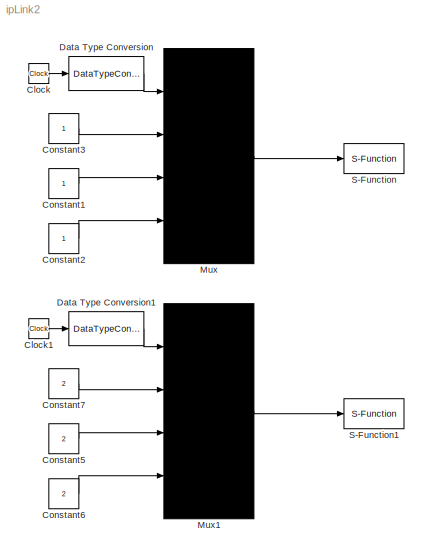
MODEL ipLink2
KIND model
BLOCK [Clock] Clock
  Decimation = 10
  SID = 102
BLOCK [Clock] Clock1
  Decimation = 10
  SID = 104
BLOCK [Constant] Constant1
  OutDataType = fixdt(1, 16)
  OutDataTypeMode = uint8
  OutDataTypeStr = uint8
  OutScaling = 2^0
  SID = 79
BLOCK [Constant] Constant2
  OutDataType = fixdt(1, 16)
  OutDataTypeMode = uint8
  OutDataTypeStr = uint8
  OutScaling = 2^0
  SID = 80
BLOCK [Constant] Constant3
  OutDataType = fixdt(1, 16)
  OutDataTypeMode = uint8
  OutDataTypeStr = uint8
  OutScaling = 2^0
  SID = 83
BLOCK [Constant] Constant5
  OutDataType = fixdt(1, 16)
  OutDataTypeMode = uint8
  OutDataTypeStr = uint8
  OutScaling = 2^0
  SID = 85
  Value = 2
BLOCK [Constant] Constant6
  OutDataType = fixdt(1, 16)
  OutDataTypeMode = uint8
  OutDataTypeStr = uint8
  OutScaling = 2^0
  SID = 86
  Value = 2
BLOCK [Constant] Constant7
  OutDataType = fixdt(1, 16)
  OutDataTypeMode = uint8
  OutDataTypeStr = uint8
  OutScaling = 2^0
  SID = 87
  Value = 2
BLOCK [DataTypeConversion] Data Type Conversion
  OutDataType = fixdt(1, 16)
  OutDataTypeMode = uint8
  OutDataTypeStr = uint8
  OutScaling = 2^0
  RndMeth = Floor
  SID = 103
  SaturateOnIntegerOverflow = off
BLOCK [DataTypeConversion] Data Type Conversion1
  OutDataType = fixdt(1, 16)
  OutDataTypeMode = uint8
  OutDataTypeStr = uint8
  OutScaling = 2^0
  RndMeth = Floor
  SID = 105
  SaturateOnIntegerOverflow = off
BLOCK [Mux] Mux
  DisplayOption = bar
  Ports = [4, 1]
  SID = 73
BLOCK [Mux] Mux1
  DisplayOption = bar
  Ports = [4, 1]
  SID = 88
BLOCK [S-Function] S-Function
  EnableBusSupport = off
  FunctionName = toIp
  Parameters = '127.0.0.1','6665'
  Ports = [1]
  SID = 1
BLOCK [S-Function] S-Function1
  EnableBusSupport = off
  FunctionName = toIp
  Parameters = '127.0.0.1','6666'
  Ports = [1]
  SID = 89
LINE Clock1:1 -> Data Type Conversion1:1
LINE Clock:1 -> Data Type Conversion:1
LINE Constant1:1 -> Mux:3
LINE Constant2:1 -> Mux:4
LINE Constant3:1 -> Mux:2
LINE Constant5:1 -> Mux1:3
LINE Constant6:1 -> Mux1:4
LINE Constant7:1 -> Mux1:2
LINE Data Type Conversion1:1 -> Mux1:1
LINE Data Type Conversion:1 -> Mux:1
LINE Mux1:1 -> S-Function1:1
LINE Mux:1 -> S-Function:1
